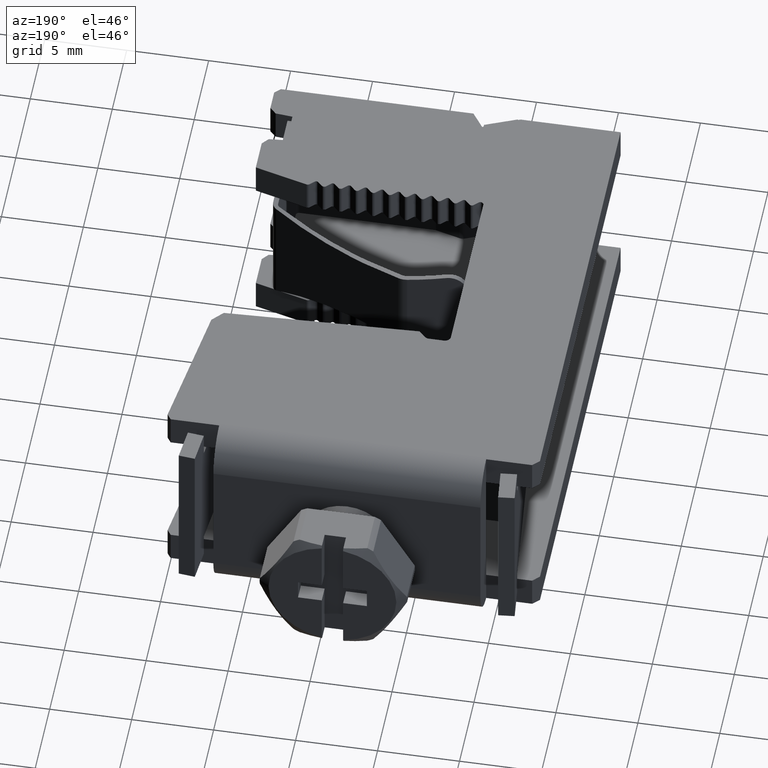
[diagram: clean part render]
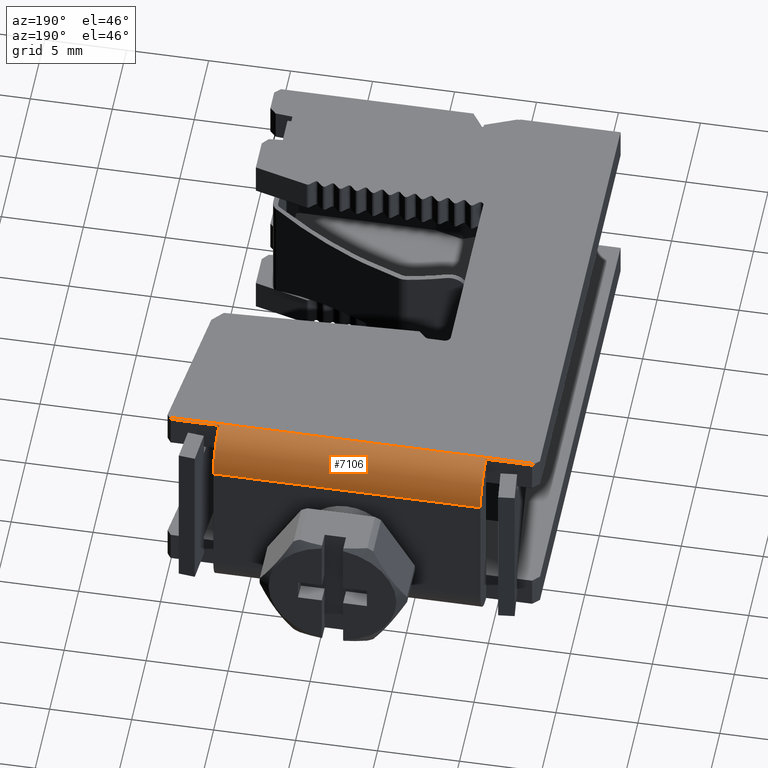
[diagram: same view with one face highlighted and labeled with its STEP entity id]
A machine part, auxiliary view. The second image highlights one B-rep face of the part: STEP entity #7106.
In plain terms, the highlighted cylindrical surface (edge-blend (fillet) strip) has radius 2.15 mm, axis along (1, -0, 0).
Its self-contained STEP definition (entity closure, byte-faithful):
#1104 = CARTESIAN_POINT ( 'NONE',  ( 7.822759001598525300, 26.92833341090971200, 11.99476105895272400 ) ) ;
#1127 = DIRECTION ( 'NONE',  ( -1.000000000000000000, -0.0000000000000000000, -0.0000000000000000000 ) ) ;
#1147 = LINE ( 'NONE', #1104, #8504 ) ;
#1267 = CARTESIAN_POINT ( 'NONE',  ( 0.6762782301292131800, 26.77833341090972000, 12.00000000000000000 ) ) ;
#1274 = DIRECTION ( 'NONE',  ( 1.000000000000000000, -0.0000000000000000000, 0.0000000000000000000 ) ) ;
#1292 = LINE ( 'NONE', #1267, #8531 ) ;
#1304 = CARTESIAN_POINT ( 'NONE',  ( -2.174601184342166400, 26.87840455095380700, 11.99825297660113700 ) ) ;
#1308 = LINE ( 'NONE', #1337, #8559 ) ;
#1310 = DIRECTION ( 'NONE',  ( -1.000000000000000000, 2.426186679687842200E-016, -0.0000000000000000000 ) ) ;
#1312 = DIRECTION ( 'NONE',  ( 0.0000000000000000000, 1.000000000000000000, -8.068481283613059700E-016 ) ) ;
#1321 = CARTESIAN_POINT ( 'NONE',  ( -2.124672324386263500, 26.92833341090971200, 11.99476105895272400 ) ) ;
#1325 = CARTESIAN_POINT ( 'NONE',  ( 16.96627823012921300, 26.77833341090971700, 9.850000000000001400 ) ) ;
#1326 = CARTESIAN_POINT ( 'NONE',  ( -2.274672324386255000, 26.77833341090972000, 12.00000000000000000 ) ) ;
#1331 = CARTESIAN_POINT ( 'NONE',  ( -2.224621504759005200, 26.82838423053697200, 12.00000000000000000 ) ) ;
#1337 = CARTESIAN_POINT ( 'NONE',  ( 9.812759001598525500, 26.92833341090971200, 11.99476105895272000 ) ) ;
#1344 = DIRECTION ( 'NONE',  ( -1.000000000000000000, -0.0000000000000000000, -0.0000000000000000000 ) ) ;
#1358 = CARTESIAN_POINT ( 'NONE',  ( 19.92422724418323600, 26.92833341090971200, 11.99476105895272000 ) ) ;
#1379 = CARTESIAN_POINT ( 'NONE',  ( 19.95918780829926900, 26.87840455095381000, 11.99825297660113900 ) ) ;
#1381 = CARTESIAN_POINT ( 'NONE',  ( 19.99421241371950200, 26.82838423053697200, 12.00000000000000000 ) ) ;
#1390 = CARTESIAN_POINT ( 'NONE',  ( 20.02925837491676800, 26.77833341090971700, 12.00000000000000000 ) ) ;
#1695 = VERTEX_POINT ( 'NONE', #5345 ) ;
#1697 = VERTEX_POINT ( 'NONE', #5382 ) ;
#1711 = VERTEX_POINT ( 'NONE', #5369 ) ;
#1712 = VERTEX_POINT ( 'NONE', #5367 ) ;
#1754 = VERTEX_POINT ( 'NONE', #4325 ) ;
#1761 = VERTEX_POINT ( 'NONE', #4324 ) ;
#1778 = VERTEX_POINT ( 'NONE', #4329 ) ;
#1812 = VERTEX_POINT ( 'NONE', #4400 ) ;
#2029 = ORIENTED_EDGE ( 'NONE', *, *, #7230, .T. ) ;
#2047 = ORIENTED_EDGE ( 'NONE', *, *, #7558, .T. ) ;
#2058 = ORIENTED_EDGE ( 'NONE', *, *, #7132, .T. ) ;
#2063 = ORIENTED_EDGE ( 'NONE', *, *, #7225, .T. ) ;
#4324 = CARTESIAN_POINT ( 'NONE',  ( 19.92422724418323600, 26.92833341090971200, 11.99476105895272000 ) ) ;
#4325 = CARTESIAN_POINT ( 'NONE',  ( -2.124672324386263500, 26.92833341090971200, 11.99476105895272400 ) ) ;
#4329 = CARTESIAN_POINT ( 'NONE',  ( 0.6762782301292134000, 26.92833341090971200, 11.99476105895272400 ) ) ;
#4400 = CARTESIAN_POINT ( 'NONE',  ( -2.274672324386255000, 26.77833341090972000, 12.00000000000000000 ) ) ;
#5345 = CARTESIAN_POINT ( 'NONE',  ( 16.96627823012921300, 28.92833341090971500, 9.850000000000001400 ) ) ;
#5367 = CARTESIAN_POINT ( 'NONE',  ( 16.96627823012921300, 26.92833341090971200, 11.99476105895272000 ) ) ;
#5369 = CARTESIAN_POINT ( 'NONE',  ( 20.02925837491676800, 26.77833341090971700, 12.00000000000000000 ) ) ;
#5382 = CARTESIAN_POINT ( 'NONE',  ( 0.6762782301292131800, 28.92833341090971500, 9.850000000000001400 ) ) ;
#5777 = EDGE_LOOP ( 'NONE', ( #8905, #2029, #2063, #2047, #2058, #8909, #8898, #8904 ) ) ;
#7106 = ADVANCED_FACE ( 'NONE', ( #10605 ), #10571, .T. ) ;
#7132 = EDGE_CURVE ( 'NONE', #1697, #1778, #8435, .T. ) ;
#7173 = EDGE_CURVE ( 'NONE', #1778, #1754, #1147, .T. ) ;
#7217 = EDGE_CURVE ( 'NONE', #1812, #1711, #1292, .T. ) ;
#7225 = EDGE_CURVE ( 'NONE', #1712, #1695, #8558, .T. ) ;
#7226 = EDGE_CURVE ( 'NONE', #1754, #1812, #10832, .T. ) ;
#7230 = EDGE_CURVE ( 'NONE', #1761, #1712, #1308, .T. ) ;
#7237 = EDGE_CURVE ( 'NONE', #1711, #1761, #10831, .T. ) ;
#7558 = EDGE_CURVE ( 'NONE', #1695, #1697, #9354, .T. ) ;
#7813 = VECTOR ( 'NONE', #9348, 1000.000000000000000 ) ;
#8400 = AXIS2_PLACEMENT_3D ( 'NONE', #10576, #10598, #10616 ) ;
#8433 = AXIS2_PLACEMENT_3D ( 'NONE', #10715, #10680, #10695 ) ;
#8435 = CIRCLE ( 'NONE', #8433, 2.149999999999999000 ) ;
#8504 = VECTOR ( 'NONE', #1127, 1000.000000000000000 ) ;
#8531 = VECTOR ( 'NONE', #1274, 1000.000000000000000 ) ;
#8558 = CIRCLE ( 'NONE', #8566, 2.149999999999999000 ) ;
#8559 = VECTOR ( 'NONE', #1344, 1000.000000000000000 ) ;
#8566 = AXIS2_PLACEMENT_3D ( 'NONE', #1325, #1310, #1312 ) ;
#8898 = ORIENTED_EDGE ( 'NONE', *, *, #7226, .T. ) ;
#8904 = ORIENTED_EDGE ( 'NONE', *, *, #7217, .T. ) ;
#8905 = ORIENTED_EDGE ( 'NONE', *, *, #7237, .T. ) ;
#8909 = ORIENTED_EDGE ( 'NONE', *, *, #7173, .T. ) ;
#9336 = CARTESIAN_POINT ( 'NONE',  ( 0.6762782301292131800, 28.92833341090971900, 9.850000000000001400 ) ) ;
#9348 = DIRECTION ( 'NONE',  ( -1.000000000000000000, 2.426186679687842200E-016, -0.0000000000000000000 ) ) ;
#9354 = LINE ( 'NONE', #9336, #7813 ) ;
#10571 = CYLINDRICAL_SURFACE ( 'NONE', #8400, 2.149999999999999000 ) ;
#10576 = CARTESIAN_POINT ( 'NONE',  ( 0.6762782301292126200, 26.77833341090972000, 9.850000000000001400 ) ) ;
#10598 = DIRECTION ( 'NONE',  ( 1.000000000000000000, -2.426186679687842200E-016, 0.0000000000000000000 ) ) ;
#10605 = FACE_OUTER_BOUND ( 'NONE', #5777, .T. ) ;
#10616 = DIRECTION ( 'NONE',  ( 2.521400401129081200E-016, 1.000000000000000000, 0.0000000000000000000 ) ) ;
#10680 = DIRECTION ( 'NONE',  ( 1.000000000000000000, -2.426186679687842200E-016, 0.0000000000000000000 ) ) ;
#10695 = DIRECTION ( 'NONE',  ( 2.521400401129081200E-016, 1.000000000000000000, 0.0000000000000000000 ) ) ;
#10715 = CARTESIAN_POINT ( 'NONE',  ( 0.6762782301292126200, 26.77833341090972000, 9.850000000000001400 ) ) ;
#10831 =( BOUNDED_CURVE ( )  B_SPLINE_CURVE ( 3, ( #1390, #1381, #1379, #1358 ),
 .UNSPECIFIED., .F., .T. ) 
 B_SPLINE_CURVE_WITH_KNOTS ( ( 4, 4 ),
 ( 1.570796326794897400, 1.640620491778257000 ),
 .UNSPECIFIED. ) 
 CURVE ( )  GEOMETRIC_REPRESENTATION_ITEM ( )  RATIONAL_B_SPLINE_CURVE ( ( 1.000000000000000000, 0.9995937567637955800, 0.9995937567637955800, 1.000000000000000000 ) ) 
 REPRESENTATION_ITEM ( '' )  );
#10832 =( BOUNDED_CURVE ( )  B_SPLINE_CURVE ( 3, ( #1321, #1304, #1331, #1326 ),
 .UNSPECIFIED., .F., .T. ) 
 B_SPLINE_CURVE_WITH_KNOTS ( ( 4, 4 ),
 ( 1.500972161811539000, 1.570796326794897000 ),
 .UNSPECIFIED. ) 
 CURVE ( )  GEOMETRIC_REPRESENTATION_ITEM ( )  RATIONAL_B_SPLINE_CURVE ( ( 1.000000000000000000, 0.9995937567637955800, 0.9995937567637955800, 1.000000000000000000 ) ) 
 REPRESENTATION_ITEM ( '' )  );